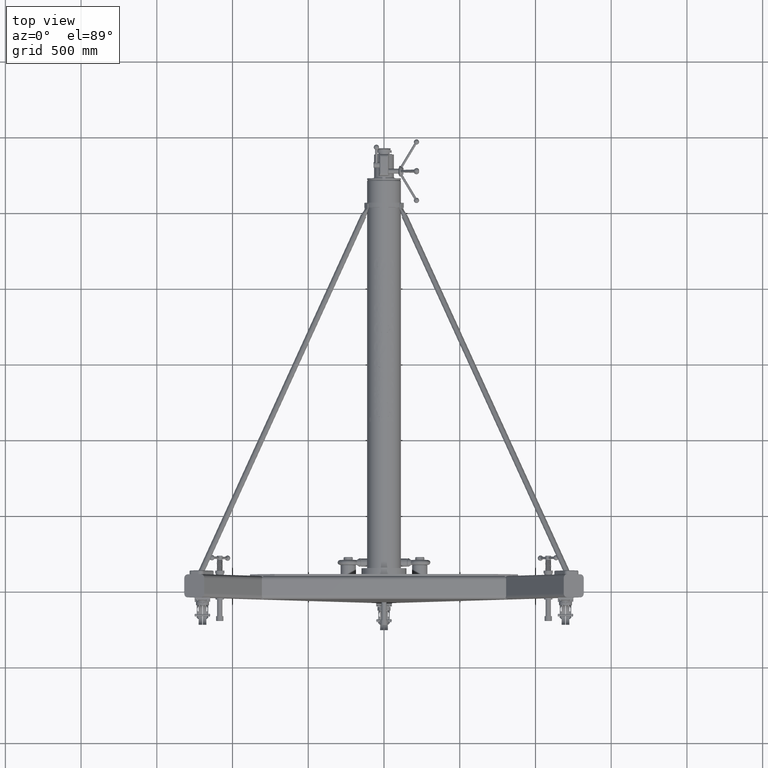
[diagram: clean part render]
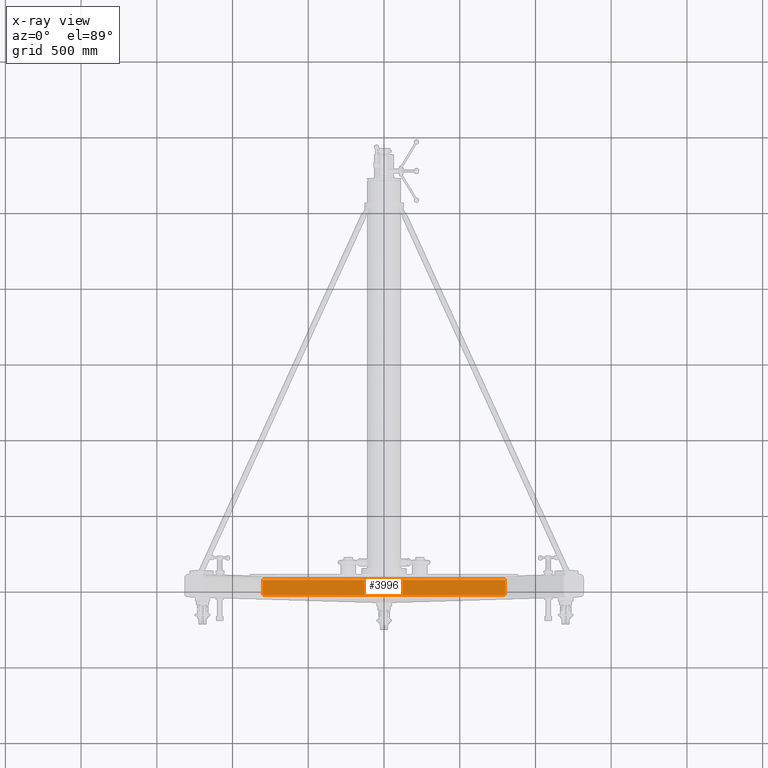
[diagram: x-ray — body ghosted, one internal face saturated and labeled with its STEP entity id]
A machine part, top view, then the same camera in x-ray: the body is ghosted and one INTERNAL B-rep face — a face not visible from any outside direction — is saturated and labeled: STEP entity #3996.
In plain terms, the highlighted planar face has unit normal (0, 0, -1).
Its self-contained STEP definition (entity closure, byte-faithful):
#3996 = ADVANCED_FACE ( 'Defeatured_15125', ( #92365 ), #39454, .T. ) ;
#6797 = EDGE_CURVE ( 'Defeatured_15148+Defeatured_15125+Defeatured_15147+Defeatured_15143', #140458, #108987, #78318, .T. ) ;
#10746 = VERTEX_POINT ( 'NONE', #141990 ) ;
#16928 = ORIENTED_EDGE ( 'NONE', *, *, #130982, .F. ) ;
#24460 = LINE ( 'NONE', #124361, #125945 ) ;
#25187 = ORIENTED_EDGE ( 'NONE', *, *, #34256, .F. ) ;
#26199 = VECTOR ( 'NONE', #142859, 39.37007874015748143 ) ;
#31203 = CARTESIAN_POINT ( 'NONE',  ( 33.00000000000000000, 2.000000000000000444, 2.500000000000000444 ) ) ;
#31981 = VECTOR ( 'NONE', #50170, 39.37007874015748143 ) ;
#34256 = EDGE_CURVE ( 'Defeatured_15139+Defeatured_15125+Defeatured_15138+Defeatured_15134', #56362, #10746, #24460, .T. ) ;
#39454 = PLANE ( 'NONE',  #101933 ) ;
#40937 = EDGE_CURVE ( 'Defeatured_15125+Defeatured_15124+Defeatured_15148+Defeatured_15139', #140458, #10746, #67903, .T. ) ;
#45893 = DIRECTION ( 'NONE',  ( -1.000000000000000000, -0.0000000000000000000, -0.0000000000000000000 ) ) ;
#50170 = DIRECTION ( 'NONE',  ( 7.886165872635959947E-17, 1.000000000000000000, 1.365923996832131363E-16 ) ) ;
#51243 = ORIENTED_EDGE ( 'NONE', *, *, #40937, .T. ) ;
#56362 = VERTEX_POINT ( 'NONE', #76907 ) ;
#58255 = DIRECTION ( 'NONE',  ( 7.886165872635958714E-17, -1.000000000000000000, -1.365923996832131363E-16 ) ) ;
#66456 = CARTESIAN_POINT ( 'NONE',  ( 33.00000000000000000, -2.000000000000000444, 2.500000000000000000 ) ) ;
#67903 = LINE ( 'NONE', #66456, #68873 ) ;
#68873 = VECTOR ( 'NONE', #45893, 39.37007874015748143 ) ;
#71444 = CARTESIAN_POINT ( 'NONE',  ( 31.46132486540516382, -2.000000000000001332, 2.499999999999960920 ) ) ;
#76907 = CARTESIAN_POINT ( 'NONE',  ( -31.46132486540516737, 1.999999999999497291, 2.500000000000083045 ) ) ;
#78318 = LINE ( 'NONE', #123145, #31981 ) ;
#79480 = CARTESIAN_POINT ( 'NONE',  ( 31.46132486540514606, 1.999999999999998668, 2.499999999999934719 ) ) ;
#92365 = FACE_OUTER_BOUND ( 'NONE', #142787, .T. ) ;
#101933 = AXIS2_PLACEMENT_3D ( 'NONE', #137204, #128346, #106289 ) ;
#106289 = DIRECTION ( 'NONE',  ( 0.0000000000000000000, 1.000000000000000000, 1.365923996832131363E-16 ) ) ;
#106550 = ORIENTED_EDGE ( 'NONE', *, *, #6797, .F. ) ;
#108987 = VERTEX_POINT ( 'NONE', #79480 ) ;
#119369 = LINE ( 'NONE', #31203, #26199 ) ;
#123145 = CARTESIAN_POINT ( 'NONE',  ( 31.46132486540518869, -2.000000000000000444, 2.500000000000000000 ) ) ;
#124361 = CARTESIAN_POINT ( 'NONE',  ( -31.46132486540518158, -2.000000000000005773, 2.500000000000000000 ) ) ;
#125945 = VECTOR ( 'NONE', #58255, 39.37007874015748143 ) ;
#128346 = DIRECTION ( 'NONE',  ( 0.0000000000000000000, 1.365923996832131363E-16, -1.000000000000000000 ) ) ;
#130982 = EDGE_CURVE ( 'Defeatured_15126+Defeatured_15125+Defeatured_15128+Defeatured_15122', #108987, #56362, #119369, .T. ) ;
#137204 = CARTESIAN_POINT ( 'NONE',  ( 33.00000000000000000, -2.000000000000000444, 2.500000000000000000 ) ) ;
#140458 = VERTEX_POINT ( 'NONE', #71444 ) ;
#141990 = CARTESIAN_POINT ( 'NONE',  ( -31.46132486540515671, -2.000000000000503153, 2.500000000000056843 ) ) ;
#142787 = EDGE_LOOP ( 'NONE', ( #106550, #51243, #25187, #16928 ) ) ;
#142859 = DIRECTION ( 'NONE',  ( -1.000000000000000000, -0.0000000000000000000, -0.0000000000000000000 ) ) ;